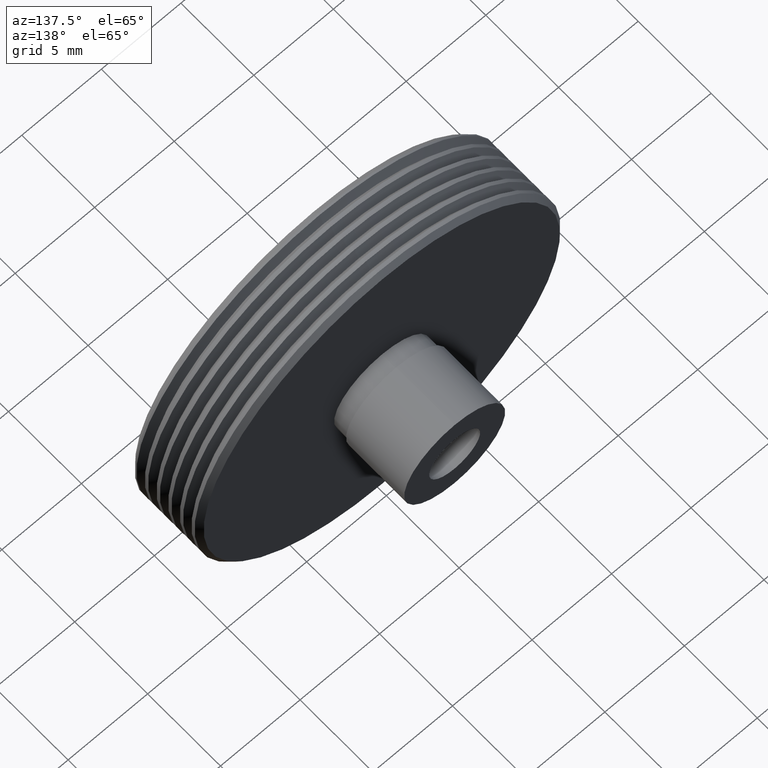
[diagram: clean part render]
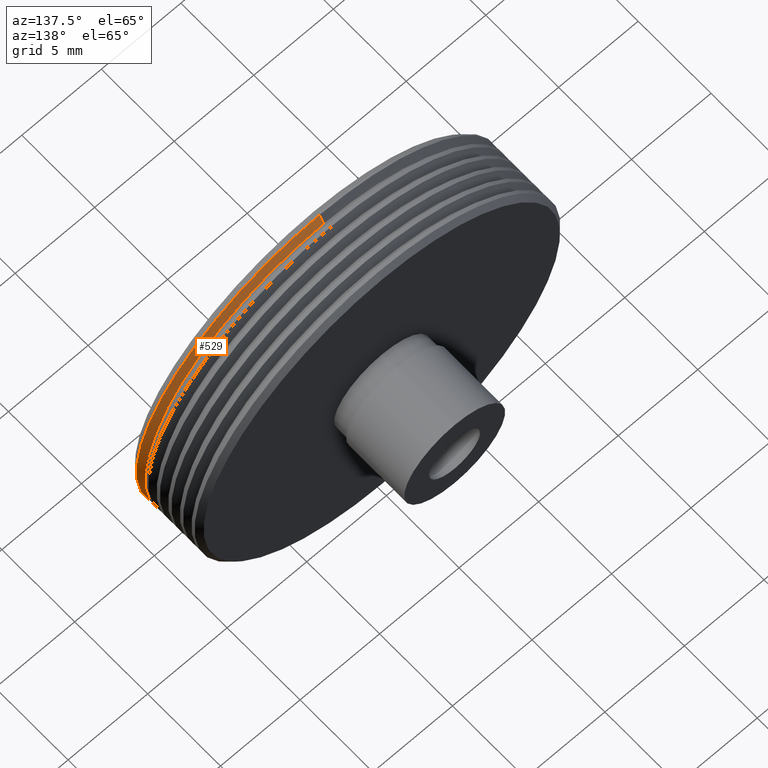
[diagram: same view with one face highlighted and labeled with its STEP entity id]
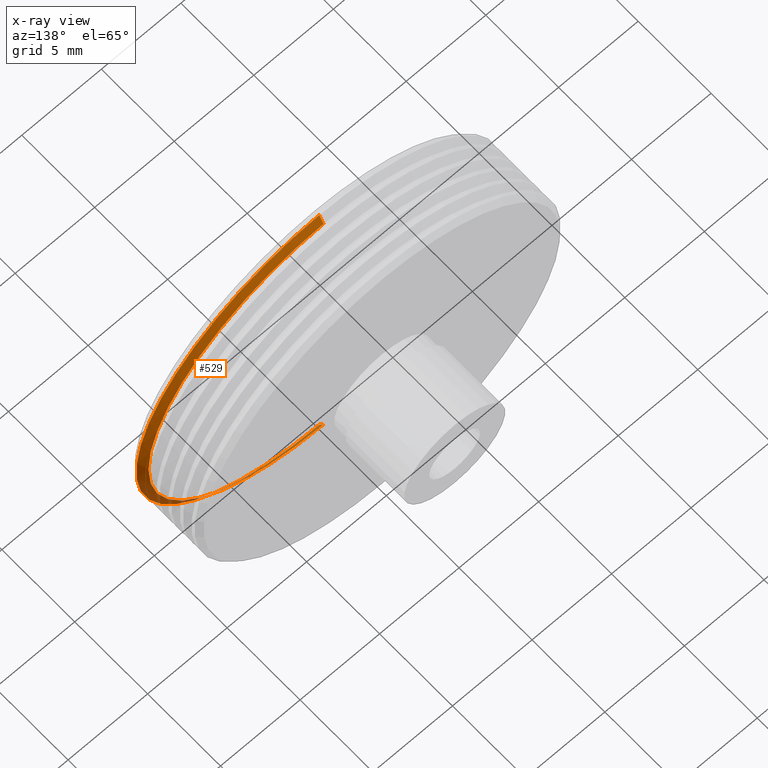
[diagram: x-ray of the same camera — body ghosted, the highlighted face saturated]
A machine part, auxiliary view. The second image highlights one B-rep face of the part: STEP entity #529.
The next image is the same camera in x-ray: the body ghosted, the highlighted face saturated — about 10% of this face is hidden behind the body in this view.
In plain terms, the highlighted conical surface has half-angle 60 deg.
Its self-contained STEP definition (entity closure, byte-faithful):
#2 = VERTEX_POINT ( 'NONE', #516 ) ;
#18 = CARTESIAN_POINT ( 'NONE',  ( 0.0000000000000000000, 0.7000000000000009500, -11.00000000000000200 ) ) ;
#35 = CARTESIAN_POINT ( 'NONE',  ( 0.0000000000000000000, 0.7000000000000009500, 0.0000000000000000000 ) ) ;
#98 = EDGE_LOOP ( 'NONE', ( #881, #1021, #590, #263 ) ) ;
#116 = EDGE_CURVE ( 'NONE', #603, #2, #497, .T. ) ;
#117 = VECTOR ( 'NONE', #1123, 1000.000000000000000 ) ;
#118 = DIRECTION ( 'NONE',  ( 0.0000000000000000000, -1.000000000000000000, 0.0000000000000000000 ) ) ;
#123 = CIRCLE ( 'NONE', #621, 11.50000000000000500 ) ;
#133 = CARTESIAN_POINT ( 'NONE',  ( 0.0000000000000000000, 0.7000000000000009500, 11.00000000000000200 ) ) ;
#225 = VECTOR ( 'NONE', #898, 1000.000000000000000 ) ;
#239 = DIRECTION ( 'NONE',  ( 0.0000000000000000000, 0.0000000000000000000, -1.000000000000000000 ) ) ;
#263 = ORIENTED_EDGE ( 'NONE', *, *, #437, .F. ) ;
#273 = FACE_OUTER_BOUND ( 'NONE', #98, .T. ) ;
#324 = DIRECTION ( 'NONE',  ( -0.0000000000000000000, 1.000000000000000000, -0.0000000000000000000 ) ) ;
#437 = EDGE_CURVE ( 'NONE', #829, #478, #1057, .T. ) ;
#478 = VERTEX_POINT ( 'NONE', #827 ) ;
#497 = LINE ( 'NONE', #731, #117 ) ;
#516 = CARTESIAN_POINT ( 'NONE',  ( 0.0000000000000000000, 0.4113248654051854800, 11.50000000000000500 ) ) ;
#529 = ADVANCED_FACE ( 'NONE', ( #273 ), #589, .T. ) ;
#573 = CARTESIAN_POINT ( 'NONE',  ( 1.377727649040772800E-015, 0.7000000000000009500, -11.00000000000000200 ) ) ;
#589 = CONICAL_SURFACE ( 'NONE', #986, 11.00000000000000200, 1.047197551196597200 ) ;
#590 = ORIENTED_EDGE ( 'NONE', *, *, #674, .T. ) ;
#600 = EDGE_CURVE ( 'NONE', #603, #829, #890, .T. ) ;
#603 = VERTEX_POINT ( 'NONE', #133 ) ;
#606 = CARTESIAN_POINT ( 'NONE',  ( 0.0000000000000000000, 0.7000000000000009500, 0.0000000000000000000 ) ) ;
#621 = AXIS2_PLACEMENT_3D ( 'NONE', #1237, #935, #646 ) ;
#646 = DIRECTION ( 'NONE',  ( 0.0000000000000000000, 0.0000000000000000000, -1.000000000000000000 ) ) ;
#674 = EDGE_CURVE ( 'NONE', #2, #478, #123, .T. ) ;
#731 = CARTESIAN_POINT ( 'NONE',  ( 1.347111479062088600E-015, 0.7000000000000009500, 11.00000000000000200 ) ) ;
#794 = AXIS2_PLACEMENT_3D ( 'NONE', #35, #324, #1007 ) ;
#827 = CARTESIAN_POINT ( 'NONE',  ( 1.408343819019456800E-015, 0.4113248654051854800, -11.50000000000000500 ) ) ;
#829 = VERTEX_POINT ( 'NONE', #573 ) ;
#881 = ORIENTED_EDGE ( 'NONE', *, *, #600, .F. ) ;
#890 = CIRCLE ( 'NONE', #794, 11.00000000000000200 ) ;
#898 = DIRECTION ( 'NONE',  ( 0.0000000000000000000, -0.5000000000000004400, -0.8660254037844383700 ) ) ;
#935 = DIRECTION ( 'NONE',  ( -0.0000000000000000000, 1.000000000000000000, -0.0000000000000000000 ) ) ;
#986 = AXIS2_PLACEMENT_3D ( 'NONE', #606, #118, #239 ) ;
#1007 = DIRECTION ( 'NONE',  ( 0.0000000000000000000, 0.0000000000000000000, 1.000000000000000000 ) ) ;
#1021 = ORIENTED_EDGE ( 'NONE', *, *, #116, .T. ) ;
#1057 = LINE ( 'NONE', #18, #225 ) ;
#1123 = DIRECTION ( 'NONE',  ( 1.060575238724906500E-016, -0.5000000000000004400, 0.8660254037844383700 ) ) ;
#1237 = CARTESIAN_POINT ( 'NONE',  ( 0.0000000000000000000, 0.4113248654051854800, 0.0000000000000000000 ) ) ;